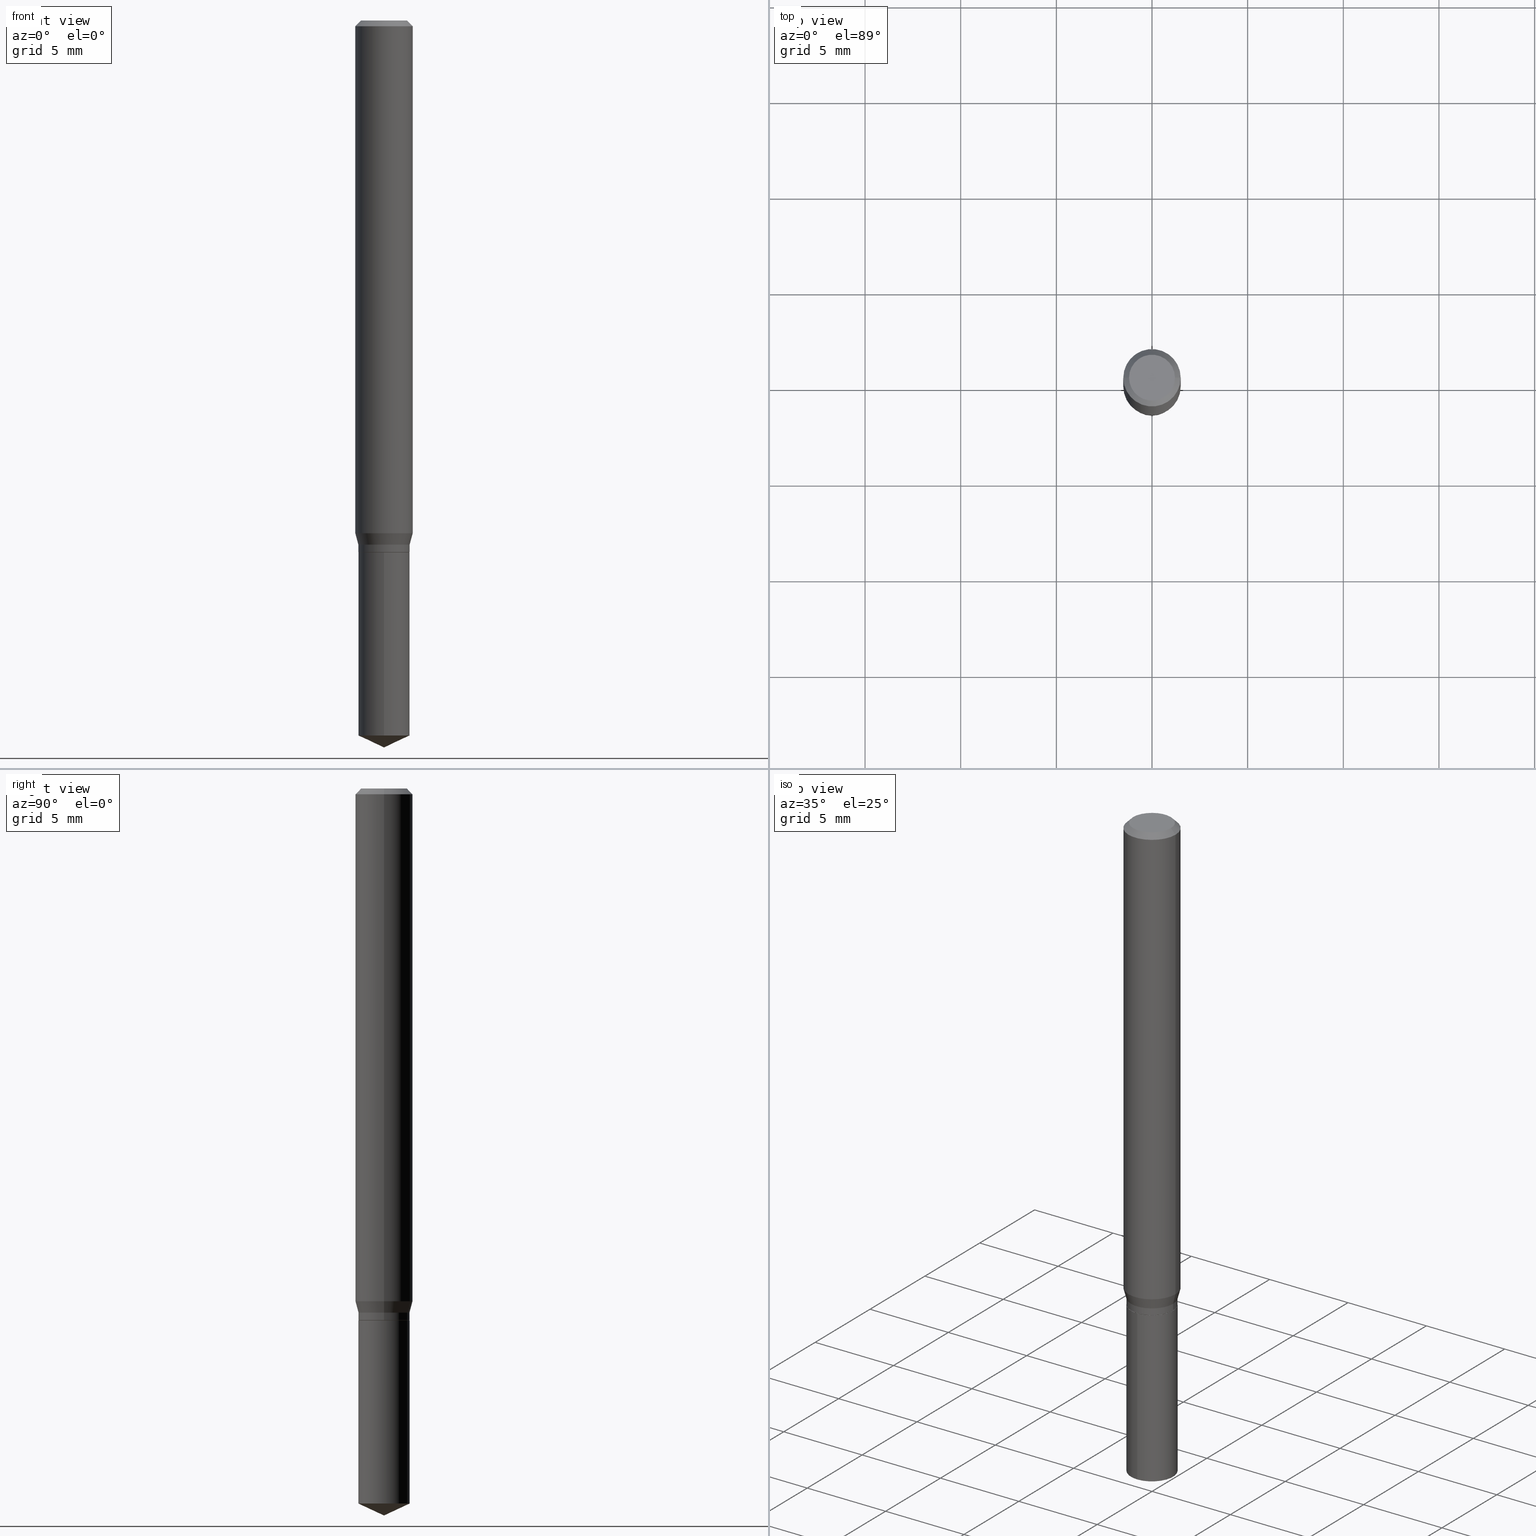
[diagram: canonical four-view strip — front | top / right | iso, engineering-drawing reading convention]
A machine part, canonical four-view strip (front | top / right | iso — engineering-drawing reading convention). The complete STEP part file that produces these views, byte-faithful:
ISO-10303-21;
HEADER;
FILE_DESCRIPTION (( 'STEP AP203' ),
    '1' );
FILE_NAME ('08026.STEP',
    '2024-04-24T09:13:47',
    ( '' ),
    ( '' ),
    'SwSTEP 2.0',
    'SolidWorks 2023',
    '' );
FILE_SCHEMA (( 'CONFIG_CONTROL_DESIGN' ));
ENDSEC;

DATA;
#1 = ORIENTED_EDGE ( 'NONE', *, *, #217, .T. ) ;
#2 = DIRECTION ( 'NONE',  ( -2.445468806185136597E-29, 3.491481338843145583E-15, 1.000000000000000000 ) ) ;
#3 = CIRCLE ( 'NONE', #133, 0.04724000000000000421 ) ;
#4 = CIRCLE ( 'NONE', #343, 0.05274999999999999828 ) ;
#5 = EDGE_LOOP ( 'NONE', ( #490, #1 ) ) ;
#6 = DIRECTION ( 'NONE',  ( -2.445468806185136877E-29, 3.491481338843145188E-15, 1.000000000000000000 ) ) ;
#7 = APPROVAL ( #422, 'UNSPECIFIED' ) ;
#8 = CARTESIAN_POINT ( 'NONE',  ( 0.000000000000000000, 0.000000000000000000, 0.000000000000000000 ) ) ;
#9 = VERTEX_POINT ( 'NONE', #191 ) ;
#10 = COORDINATED_UNIVERSAL_TIME_OFFSET ( 5, 0, .BEHIND. ) ;
#11 = DIRECTION ( 'NONE',  ( -2.445468806185136597E-29, 3.491481338843145583E-15, 1.000000000000000000 ) ) ;
#12 = AXIS2_PLACEMENT_3D ( 'NONE', #205, #13, #352 ) ;
#13 = DIRECTION ( 'NONE',  ( -2.445468806185136597E-29, 3.491481338843145583E-15, 1.000000000000000000 ) ) ;
#14 = CYLINDRICAL_SURFACE ( 'NONE', #425, 0.05274999999999999828 ) ;
#15 = CC_DESIGN_PERSON_AND_ORGANIZATION_ASSIGNMENT ( #195, #237, ( #155 ) ) ;
#16 = PRODUCT_DEFINITION_SHAPE ( 'NONE', 'NONE',  #103 ) ;
#17 = DIRECTION ( 'NONE',  ( 1.000000000000000000, -6.982962677686264344E-15, 0.000000000000000000 ) ) ;
#18 = CONICAL_SURFACE ( 'NONE', #192, 0.05224999999999999090, 0.7853981633975507526 ) ;
#19 = DIRECTION ( 'NONE',  ( -2.445468806185136597E-29, 3.491481338843145583E-15, 1.000000000000000000 ) ) ;
#20 = ADVANCED_FACE ( 'NONE', ( #416 ), #484, .F. ) ;
#21 = DIRECTION ( 'NONE',  ( -2.445468806185136597E-29, 3.491481338843145583E-15, 1.000000000000000000 ) ) ;
#22 = CARTESIAN_POINT ( 'NONE',  ( -0.05224999999999999090, -3.450167745929169899E-15, -1.094499999999999806 ) ) ;
#23 = AXIS2_PLACEMENT_3D ( 'NONE', #218, #216, #17 ) ;
#24 = DIRECTION ( 'NONE',  ( -6.982962677686265133E-15, -1.000000000000000000, 5.178858755761636657E-15 ) ) ;
#25 = APPROVAL ( #463, 'UNSPECIFIED' ) ;
#26 = CIRCLE ( 'NONE', #202, 0.05274999999999999828 ) ;
#27 = ORIENTED_EDGE ( 'NONE', *, *, #279, .F. ) ;
#28 = DIMENSIONAL_EXPONENTS ( 1.000000000000000000, 0.000000000000000000, 0.000000000000000000, 0.000000000000000000, 0.000000000000000000, 0.000000000000000000, 0.000000000000000000 ) ;
#29 = LINE ( 'NONE', #482, #275 ) ;
#30 = FACE_OUTER_BOUND ( 'NONE', #307, .T. ) ;
#31 = CYLINDRICAL_SURFACE ( 'NONE', #116, 0.05905000000000006771 ) ;
#32 = ORIENTED_EDGE ( 'NONE', *, *, #169, .T. ) ;
#33 = ORIENTED_EDGE ( 'NONE', *, *, #447, .F. ) ;
#34 = CONICAL_SURFACE ( 'NONE', #23, 0.05274999999999999828, 0.2617993877991502960 ) ;
#35 = VECTOR ( 'NONE', #267, 39.37007874015748143 ) ;
#36 = EDGE_CURVE ( 'NONE', #357, #236, #224, .T. ) ;
#37 = DATE_AND_TIME ( #241, #81 ) ;
#38 = MANIFOLD_SOLID_BREP ( 'Body-Move/Copy2[2]', #55 ) ;
#39 = ORIENTED_EDGE ( 'NONE', *, *, #97, .F. ) ;
#40 = ORIENTED_EDGE ( 'NONE', *, *, #358, .T. ) ;
#41 = COORDINATED_UNIVERSAL_TIME_OFFSET ( 5, 0, .BEHIND. ) ;
#42 = DIRECTION ( 'NONE',  ( 1.000000000000000000, -6.982962677686266711E-15, 4.876185090822587894E-29 ) ) ;
#43 = ORIENTED_EDGE ( 'NONE', *, *, #369, .F. ) ;
#44 = DATE_AND_TIME ( #427, #360 ) ;
#45 = FACE_OUTER_BOUND ( 'NONE', #370, .T. ) ;
#46 = ADVANCED_FACE ( 'NONE', ( #30 ), #468, .T. ) ;
#47 = AXIS2_PLACEMENT_3D ( 'NONE', #152, #120, #72 ) ;
#48 = CIRCLE ( 'NONE', #58, 0.05274999999999999828 ) ;
#49 = ORIENTED_EDGE ( 'NONE', *, *, #233, .F. ) ;
#50 = DIRECTION ( 'NONE',  ( 2.445458899330789267E-29, -3.491495526022433599E-15, -1.000000000000000000 ) ) ;
#51 = APPROVAL_ROLE ( '' ) ;
#52 = DIRECTION ( 'NONE',  ( -2.445458899330790108E-29, 3.491495526022433205E-15, 1.000000000000000000 ) ) ;
#53 = ORIENTED_EDGE ( 'NONE', *, *, #243, .F. ) ;
#54 = DIRECTION ( 'NONE',  ( -6.982962677686267499E-15, -1.000000000000000000, 3.520397390770440854E-15 ) ) ;
#55 = CLOSED_SHELL ( 'NONE', ( #335, #181, #394, #250, #119, #350, #288, #62, #46, #382, #20, #190 ) ) ;
#56 = AXIS2_PLACEMENT_3D ( 'NONE', #393, #130, #278 ) ;
#57 = ADVANCED_FACE ( 'NONE', ( #117 ), #228, .F. ) ;
#58 = AXIS2_PLACEMENT_3D ( 'NONE', #408, #118, #337 ) ;
#59 = DIRECTION ( 'NONE',  ( 1.000000000000000000, -6.982962677686265922E-15, 4.876176775795935232E-29 ) ) ;
#60 = CARTESIAN_POINT ( 'NONE',  ( 2.676565608369631234E-29, -3.821426325363821984E-15, -1.094499999999999806 ) ) ;
#61 = CARTESIAN_POINT ( 'NONE',  ( 0.000000000000000000, 0.000000000000000000, 0.000000000000000000 ) ) ;
#62 = ADVANCED_FACE ( 'NONE', ( #207 ), #315, .T. ) ;
#63 = AXIS2_PLACEMENT_3D ( 'NONE', #222, #147, #304 ) ;
#64 = PERSON ( 'UNSPECIFIED', 'UNSPECIFIED', 'UNSPECIFIED', ('UNSPECIFIED'), ('UNSPECIFIED'), ('UNSPECIFIED') ) ;
#65 = LINE ( 'NONE', #326, #114 ) ;
#66 = DIRECTION ( 'NONE',  ( -2.445468806185136597E-29, 3.491481338843145583E-15, 1.000000000000000000 ) ) ;
#67 = FACE_OUTER_BOUND ( 'NONE', #346, .T. ) ;
#68 = ORIENTED_EDGE ( 'NONE', *, *, #297, .F. ) ;
#69 = VECTOR ( 'NONE', #242, 39.37007874015748143 ) ;
#70 = CARTESIAN_POINT ( 'NONE',  ( 0.04724000000000000421, -3.852183633974369345E-16, -3.380025165621689721E-19 ) ) ;
#71 =( GEOMETRIC_REPRESENTATION_CONTEXT ( 3 ) GLOBAL_UNCERTAINTY_ASSIGNED_CONTEXT ( ( #164 ) ) GLOBAL_UNIT_ASSIGNED_CONTEXT ( ( #225, #339, #75 ) ) REPRESENTATION_CONTEXT ( 'NONE', 'WORKASPACE' ) );
#72 = DIRECTION ( 'NONE',  ( 1.000000000000000000, -6.982962677686265922E-15, 4.876176775795935793E-29 ) ) ;
#73 = LENGTH_MEASURE_WITH_UNIT ( LENGTH_MEASURE( 0.02539999999999999897 ), #115 );
#74 = VERTEX_POINT ( 'NONE', #245 ) ;
#75 =( NAMED_UNIT ( * ) SI_UNIT ( $, .STERADIAN. ) SOLID_ANGLE_UNIT ( ) );
#76 = CARTESIAN_POINT ( 'NONE',  ( 2.888098660104664204E-31, -4.123439461173780263E-17, -0.01181000000000007218 ) ) ;
#77 = EDGE_CURVE ( 'NONE', #453, #375, #84, .T. ) ;
#78 = PLANE ( 'NONE',  #328 ) ;
#79 = ORIENTED_EDGE ( 'NONE', *, *, #442, .T. ) ;
#80 = AXIS2_PLACEMENT_3D ( 'NONE', #61, #293, #59 ) ;
#81 = LOCAL_TIME ( 5, 13, 47.00000000000000000, #10 ) ;
#82 = APPROVAL_ROLE ( '' ) ;
#83 = LINE ( 'NONE', #87, #185 ) ;
#84 = LINE ( 'NONE', #208, #477 ) ;
#85 = ORIENTED_EDGE ( 'NONE', *, *, #36, .T. ) ;
#86 = APPROVAL_ROLE ( '' ) ;
#87 = CARTESIAN_POINT ( 'NONE',  ( -3.683512812479237438E-16, -0.05275000000000382161, -1.094499999999999806 ) ) ;
#88 = AXIS2_PLACEMENT_3D ( 'NONE', #232, #50, #423 ) ;
#89 = VECTOR ( 'NONE', #105, 39.37007874015748143 ) ;
#90 = CC_DESIGN_APPROVAL ( #25, ( #103 ) ) ;
#91 = EDGE_LOOP ( 'NONE', ( #483, #424, #395, #162 ) ) ;
#92 = APPROVAL_DATE_TIME ( #44, #435 ) ;
#93 = CARTESIAN_POINT ( 'NONE',  ( 2.675342873966538993E-29, -3.819680584694400481E-15, -1.093999999999999861 ) ) ;
#94 = ORIENTED_EDGE ( 'NONE', *, *, #442, .F. ) ;
#95 = PERSON_AND_ORGANIZATION_ROLE ( 'design_owner' ) ;
#96 = FACE_OUTER_BOUND ( 'NONE', #316, .T. ) ;
#97 = EDGE_CURVE ( 'NONE', #375, #430, #458, .T. ) ;
#98 = ORIENTED_EDGE ( 'NONE', *, *, #206, .F. ) ;
#99 = DIRECTION ( 'NONE',  ( 1.000000000000000000, -6.982962677686264344E-15, 0.000000000000000000 ) ) ;
#100 = CIRCLE ( 'NONE', #255, 0.05274999999999999828 ) ;
#101 = PRODUCT ( '08026', '08026', '', ( #466 ) ) ;
#102 = CARTESIAN_POINT ( 'NONE',  ( 0.05905000000000006771, -4.123439461173745257E-16, 2.879382386107503723E-30 ) ) ;
#103 = PRODUCT_DEFINITION ( 'UNKNOWN', '', #155, #177 ) ;
#104 = DIRECTION ( 'NONE',  ( 1.000000000000000000, -6.982962677686265133E-15, 0.000000000000000000 ) ) ;
#105 = DIRECTION ( 'NONE',  ( -0.2588190451025215721, 5.211531920934551831E-15, 0.9659258262890679791 ) ) ;
#106 = CIRCLE ( 'NONE', #371, 0.05905000000000013016 ) ;
#107 = LOCAL_TIME ( 5, 13, 47.00000000000000000, #41 ) ;
#108 = LINE ( 'NONE', #257, #485 ) ;
#109 = CARTESIAN_POINT ( 'NONE',  ( -0.05904999999999999832, -1.443126456831318198E-15, -0.01181000000000007218 ) ) ;
#110 = ORIENTED_EDGE ( 'NONE', *, *, #111, .F. ) ;
#111 = EDGE_CURVE ( 'NONE', #271, #388, #141, .T. ) ;
#112 = DIRECTION ( 'NONE',  ( -2.445468806185136597E-29, 3.491481338843145583E-15, 1.000000000000000000 ) ) ;
#113 = ORIENTED_EDGE ( 'NONE', *, *, #489, .F. ) ;
#114 = VECTOR ( 'NONE', #364, 39.37007874015748143 ) ;
#115 =( LENGTH_UNIT ( ) NAMED_UNIT ( * ) SI_UNIT ( $, .METRE. ) );
#116 = AXIS2_PLACEMENT_3D ( 'NONE', #231, #112, #261 ) ;
#117 = FACE_OUTER_BOUND ( 'NONE', #194, .T. ) ;
#118 = DIRECTION ( 'NONE',  ( -2.445458899330790108E-29, 3.491495526022433205E-15, 1.000000000000000000 ) ) ;
#119 = ADVANCED_FACE ( 'NONE', ( #470 ), #457, .T. ) ;
#120 = DIRECTION ( 'NONE',  ( -2.438088387897960049E-29, 3.491481338843145188E-15, 1.000000000000000000 ) ) ;
#121 = DIRECTION ( 'NONE',  ( 0.000000000000000000, 0.000000000000000000, 1.000000000000000000 ) ) ;
#122 = ORIENTED_EDGE ( 'NONE', *, *, #254, .T. ) ;
#123 = COORDINATED_UNIVERSAL_TIME_OFFSET ( 5, 0, .BEHIND. ) ;
#124 = FACE_OUTER_BOUND ( 'NONE', #160, .T. ) ;
#125 = AXIS2_PLACEMENT_3D ( 'NONE', #362, #367, #366 ) ;
#126 = CC_DESIGN_PERSON_AND_ORGANIZATION_ASSIGNMENT ( #348, #95, ( #101 ) ) ;
#127 = DATE_AND_TIME ( #317, #303 ) ;
#128 = DIRECTION ( 'NONE',  ( 1.000000000000000000, -6.982962677686266711E-15, 4.876176775795936353E-29 ) ) ;
#129 = DATE_AND_TIME ( #274, #134 ) ;
#130 = DIRECTION ( 'NONE',  ( -2.445468806185136597E-29, 3.491481338843145583E-15, 1.000000000000000000 ) ) ;
#131 = PERSON_AND_ORGANIZATION ( #64, #322 ) ;
#132 = DIRECTION ( 'NONE',  ( -2.445468806185136597E-29, 3.491481338843145583E-15, 1.000000000000000000 ) ) ;
#133 = AXIS2_PLACEMENT_3D ( 'NONE', #286, #384, #42 ) ;
#134 = LOCAL_TIME ( 5, 13, 47.00000000000000000, #123 ) ;
#135 = ORIENTED_EDGE ( 'NONE', *, *, #475, .F. ) ;
#136 = CALENDAR_DATE ( 2024, 24, 4 ) ;
#137 = CARTESIAN_POINT ( 'NONE',  ( 2.888098660104664204E-31, -4.123439461173780263E-17, -0.01181000000000007218 ) ) ;
#138 = ADVANCED_FACE ( 'NONE', ( #124 ), #421, .T. ) ;
#139 = CARTESIAN_POINT ( 'NONE',  ( 2.676565608369631794E-29, -3.821426325363822773E-15, -1.094499999999999806 ) ) ;
#140 = FACE_OUTER_BOUND ( 'NONE', #227, .T. ) ;
#141 = CIRCLE ( 'NONE', #56, 0.05905000000000013016 ) ;
#142 = CIRCLE ( 'NONE', #244, 0.05274999999999999828 ) ;
#143 = CARTESIAN_POINT ( 'NONE',  ( 2.676565608369631234E-29, -3.821426325363821984E-15, -1.094499999999999806 ) ) ;
#144 = DIRECTION ( 'NONE',  ( -2.445468806185136597E-29, 3.491481338843145583E-15, 1.000000000000000000 ) ) ;
#145 = CARTESIAN_POINT ( 'NONE',  ( 0.05274999999999999828, -4.134612201458050769E-15, -1.078699999999999992 ) ) ;
#146 = CONICAL_SURFACE ( 'NONE', #221, 0.05904999999999999832, 0.7853981633974452814 ) ;
#147 = DIRECTION ( 'NONE',  ( -2.445458899330790108E-29, 3.491495526022433205E-15, 1.000000000000000000 ) ) ;
#148 = EDGE_CURVE ( 'NONE', #74, #430, #247, .T. ) ;
#149 = LINE ( 'NONE', #22, #451 ) ;
#150 = EDGE_LOOP ( 'NONE', ( #196, #122, #33 ) ) ;
#151 = LINE ( 'NONE', #300, #35 ) ;
#152 = CARTESIAN_POINT ( 'NONE',  ( 4.674566726050190474E-29, -9.601750056838835032E-16, -1.094499999999999806 ) ) ;
#153 = EDGE_CURVE ( 'NONE', #380, #246, #239, .T. ) ;
#154 = VECTOR ( 'NONE', #251, 39.37007874015748143 ) ;
#155 = PRODUCT_DEFINITION_FORMATION_WITH_SPECIFIED_SOURCE ( 'ANY', '', #101, .NOT_KNOWN. ) ;
#156 = VERTEX_POINT ( 'NONE', #387 ) ;
#157 = ORIENTED_EDGE ( 'NONE', *, *, #260, .F. ) ;
#158 = PERSON_AND_ORGANIZATION ( #64, #322 ) ;
#159 = ORIENTED_EDGE ( 'NONE', *, *, #465, .T. ) ;
#160 = EDGE_LOOP ( 'NONE', ( #455, #373, #446, #113 ) ) ;
#161 = DIRECTION ( 'NONE',  ( 1.000000000000000000, -6.982962677686266711E-15, 0.000000000000000000 ) ) ;
#162 = ORIENTED_EDGE ( 'NONE', *, *, #211, .F. ) ;
#163 = DIRECTION ( 'NONE',  ( 2.445468806185136597E-29, -3.491481338843145583E-15, -1.000000000000000000 ) ) ;
#164 = UNCERTAINTY_MEASURE_WITH_UNIT (LENGTH_MEASURE( 1.000000000000000082E-05 ), #225, 'distance_accuracy_value', 'NONE');
#165 = EDGE_LOOP ( 'NONE', ( #310, #340, #94, #135 ) ) ;
#166 = PERSON_AND_ORGANIZATION ( #64, #322 ) ;
#167 = CARTESIAN_POINT ( 'NONE',  ( 2.676565608369631234E-29, -3.821426325363821984E-15, -1.094499999999999806 ) ) ;
#168 = ORIENTED_EDGE ( 'NONE', *, *, #481, .T. ) ;
#169 = EDGE_CURVE ( 'NONE', #9, #259, #276, .T. ) ;
#170 = SECURITY_CLASSIFICATION_LEVEL ( 'unclassified' ) ;
#171 = DIRECTION ( 'NONE',  ( -2.445468806185136597E-29, 3.491481338843145583E-15, 1.000000000000000000 ) ) ;
#172 = DIRECTION ( 'NONE',  ( -2.445458899330790108E-29, 3.491495526022433205E-15, 1.000000000000000000 ) ) ;
#173 = CARTESIAN_POINT ( 'NONE',  ( 2.676565608369631794E-29, -3.821426325363822773E-15, -1.094499999999999806 ) ) ;
#174 = PRODUCT_RELATED_PRODUCT_CATEGORY ( 'detail', '', ( #101 ) ) ;
#175 = CARTESIAN_POINT ( 'NONE',  ( 8.265746106709734507E-48, -1.180129479067563789E-33, -3.380025165646692144E-19 ) ) ;
#176 = AXIS2_PLACEMENT_3D ( 'NONE', #280, #52, #462 ) ;
#177 = DESIGN_CONTEXT ( 'detailed design', #229, 'design' ) ;
#178 = SECURITY_CLASSIFICATION ( '', '', #170 ) ;
#179 = DIRECTION ( 'NONE',  ( -2.445468806185136597E-29, 3.491481338843145583E-15, 1.000000000000000000 ) ) ;
#180 = DIRECTION ( 'NONE',  ( 1.000000000000000000, -6.982962677686264344E-15, 0.000000000000000000 ) ) ;
#181 = ADVANCED_FACE ( 'NONE', ( #45 ), #146, .T. ) ;
#182 = CARTESIAN_POINT ( 'NONE',  ( 0.05224999999999999090, -4.186286125272929641E-15, -1.094499999999999806 ) ) ;
#183 = VERTEX_POINT ( 'NONE', #432 ) ;
#184 = AXIS2_PLACEMENT_3D ( 'NONE', #8, #464, #128 ) ;
#185 = VECTOR ( 'NONE', #390, 39.37007874015748143 ) ;
#186 = APPROVAL_PERSON_ORGANIZATION ( #379, #7, #51 ) ;
#187 = ORIENTED_EDGE ( 'NONE', *, *, #279, .T. ) ;
#188 = CARTESIAN_POINT ( 'NONE',  ( -3.683512812479237438E-16, -0.05275000000000382161, -1.094499999999999806 ) ) ;
#189 = EDGE_LOOP ( 'NONE', ( #338, #269, #85, #98 ) ) ;
#190 = ADVANCED_FACE ( 'NONE', ( #428 ), #441, .T. ) ;
#191 = CARTESIAN_POINT ( 'NONE',  ( 3.658651059288794515E-29, -5.223626456482161457E-15, -1.496099999999999985 ) ) ;
#192 = AXIS2_PLACEMENT_3D ( 'NONE', #330, #144, #180 ) ;
#193 = CC_DESIGN_APPROVAL ( #435, ( #178 ) ) ;
#194 = EDGE_LOOP ( 'NONE', ( #347, #219 ) ) ;
#195 = PERSON_AND_ORGANIZATION ( #64, #322 ) ;
#196 = ORIENTED_EDGE ( 'NONE', *, *, #169, .F. ) ;
#197 = ORIENTED_EDGE ( 'NONE', *, *, #342, .F. ) ;
#198 = EDGE_CURVE ( 'NONE', #156, #397, #83, .T. ) ;
#199 = CARTESIAN_POINT ( 'NONE',  ( -9.261924752013118283E-28, 1.322368428517963298E-13, 37.87397874015748300 ) ) ;
#200 = VERTEX_POINT ( 'NONE', #318 ) ;
#201 = PERSON_AND_ORGANIZATION ( #64, #322 ) ;
#202 = AXIS2_PLACEMENT_3D ( 'NONE', #467, #132, #284 ) ;
#203 = DIRECTION ( 'NONE',  ( 0.7071067811865453523, -7.319954787623248157E-15, -0.7071067811865496822 ) ) ;
#204 = COORDINATED_UNIVERSAL_TIME_OFFSET ( 5, 0, .BEHIND. ) ;
#205 = CARTESIAN_POINT ( 'NONE',  ( 0.000000000000000000, 0.000000000000000000, 0.000000000000000000 ) ) ;
#206 = EDGE_CURVE ( 'NONE', #246, #236, #26, .T. ) ;
#207 = FACE_OUTER_BOUND ( 'NONE', #381, .T. ) ;
#208 = CARTESIAN_POINT ( 'NONE',  ( 0.05904999999999999832, -4.463468013801466955E-16, -0.01181000000000007218 ) ) ;
#209 = AXIS2_PLACEMENT_3D ( 'NONE', #76, #301, #449 ) ;
#210 = AXIS2_PLACEMENT_3D ( 'NONE', #471, #472, #440 ) ;
#211 = EDGE_CURVE ( 'NONE', #380, #357, #478, .T. ) ;
#212 = CARTESIAN_POINT ( 'NONE',  ( -0.05274999999999999828, -3.391449627096647910E-15, -1.078699999999999992 ) ) ;
#213 = CARTESIAN_POINT ( 'NONE',  ( -0.05274999999999999828, -3.418159459338797704E-15, -1.093999999999999861 ) ) ;
#214 = CARTESIAN_POINT ( 'NONE',  ( 3.748112931134887783E-16, 0.05274999999999485656, -1.471502271032324227 ) ) ;
#215 = VECTOR ( 'NONE', #413, 39.37007874015748143 ) ;
#216 = DIRECTION ( 'NONE',  ( -2.445468806185136597E-29, 3.491481338843145583E-15, 1.000000000000000000 ) ) ;
#217 = EDGE_CURVE ( 'NONE', #453, #74, #3, .T. ) ;
#218 = CARTESIAN_POINT ( 'NONE',  ( 2.637927201231906442E-29, -3.766260920210100894E-15, -1.078699999999999992 ) ) ;
#219 = ORIENTED_EDGE ( 'NONE', *, *, #489, .T. ) ;
#220 = ORIENTED_EDGE ( 'NONE', *, *, #77, .F. ) ;
#221 = AXIS2_PLACEMENT_3D ( 'NONE', #137, #163, #356 ) ;
#222 = CARTESIAN_POINT ( 'NONE',  ( -9.261924752013118283E-28, 1.322368428517963298E-13, 37.87397874015748300 ) ) ;
#223 = ADVANCED_FACE ( 'NONE', ( #96 ), #469, .T. ) ;
#224 = LINE ( 'NONE', #268, #215 ) ;
#225 =( CONVERSION_BASED_UNIT ( 'INCH', #73 ) LENGTH_UNIT ( ) NAMED_UNIT ( #28 ) );
#226 = ORIENTED_EDGE ( 'NONE', *, *, #217, .F. ) ;
#227 = EDGE_LOOP ( 'NONE', ( #296, #305, #377, #110 ) ) ;
#228 = PLANE ( 'NONE',  #88 ) ;
#229 = APPLICATION_CONTEXT ( 'configuration controlled 3d designs of mechanical parts and assemblies' ) ;
#230 = AXIS2_PLACEMENT_3D ( 'NONE', #199, #349, #54 ) ;
#231 = CARTESIAN_POINT ( 'NONE',  ( 0.000000000000000000, 0.000000000000000000, 0.000000000000000000 ) ) ;
#232 = CARTESIAN_POINT ( 'NONE',  ( 2.676565608369631794E-29, -3.821426325363822773E-15, -1.094499999999999806 ) ) ;
#233 = EDGE_CURVE ( 'NONE', #236, #388, #313, .T. ) ;
#234 = SHAPE_DEFINITION_REPRESENTATION ( #16, #238 ) ;
#235 = DIRECTION ( 'NONE',  ( 1.000000000000000000, -6.982962677686264344E-15, 0.000000000000000000 ) ) ;
#236 = VERTEX_POINT ( 'NONE', #145 ) ;
#237 = PERSON_AND_ORGANIZATION_ROLE ( 'creator' ) ;
#238 = ADVANCED_BREP_SHAPE_REPRESENTATION ( '08026', ( #365, #38, #351 ), #71 ) ;
#239 = LINE ( 'NONE', #359, #402 ) ;
#240 = EDGE_LOOP ( 'NONE', ( #79, #368, #157, #409 ) ) ;
#241 = CALENDAR_DATE ( 2024, 24, 4 ) ;
#242 = DIRECTION ( 'NONE',  ( -0.7071067811865453523, 2.468850131082234184E-15, -0.7071067811865496822 ) ) ;
#243 = EDGE_CURVE ( 'NONE', #433, #200, #327, .T. ) ;
#244 = AXIS2_PLACEMENT_3D ( 'NONE', #372, #406, #24 ) ;
#245 = CARTESIAN_POINT ( 'NONE',  ( -0.04724000000000000421, 3.504923541997677355E-16, -3.380025165670481712E-19 ) ) ;
#246 = VERTEX_POINT ( 'NONE', #291 ) ;
#247 = LINE ( 'NONE', #321, #69 ) ;
#248 = ORIENTED_EDGE ( 'NONE', *, *, #324, .T. ) ;
#249 = DIRECTION ( 'NONE',  ( -2.445468806185136877E-29, 3.491481338843145188E-15, 1.000000000000000000 ) ) ;
#250 = ADVANCED_FACE ( 'NONE', ( #294 ), #273, .T. ) ;
#251 = DIRECTION ( 'NONE',  ( -2.445468806185136877E-29, 3.491481338843145188E-15, 1.000000000000000000 ) ) ;
#252 = FACE_OUTER_BOUND ( 'NONE', #165, .T. ) ;
#253 = FACE_OUTER_BOUND ( 'NONE', #266, .T. ) ;
#254 = EDGE_CURVE ( 'NONE', #9, #156, #65, .T. ) ;
#255 = AXIS2_PLACEMENT_3D ( 'NONE', #139, #172, #361 ) ;
#256 = CONICAL_SURFACE ( 'NONE', #63, 84.42940631927464779, 1.134464013796317339 ) ;
#257 = CARTESIAN_POINT ( 'NONE',  ( -0.05905000000000006771, 4.195754854663396409E-16, -2.904631170795525045E-30 ) ) ;
#258 = CARTESIAN_POINT ( 'NONE',  ( 2.675342873966538993E-29, -3.819680584694400481E-15, -1.093999999999999861 ) ) ;
#259 = VERTEX_POINT ( 'NONE', #214 ) ;
#260 = EDGE_CURVE ( 'NONE', #236, #246, #341, .T. ) ;
#261 = DIRECTION ( 'NONE',  ( 1.000000000000000000, -6.982962677686266711E-15, 4.876176775795936353E-29 ) ) ;
#262 = ORIENTED_EDGE ( 'NONE', *, *, #254, .F. ) ;
#263 = CLOSED_SHELL ( 'NONE', ( #363, #223, #459, #138, #57 ) ) ;
#264 = APPROVAL_PERSON_ORGANIZATION ( #166, #25, #86 ) ;
#265 = DIRECTION ( 'NONE',  ( 0.7071067811866199593, -2.468850131083015945E-15, 0.7071067811864750752 ) ) ;
#266 = EDGE_LOOP ( 'NONE', ( #159, #168, #391, #407 ) ) ;
#267 = DIRECTION ( 'NONE',  ( -2.445458899330790108E-29, 3.491495526022433599E-15, 1.000000000000000000 ) ) ;
#268 = CARTESIAN_POINT ( 'NONE',  ( 0.05274999999999999828, -3.683512812479505157E-16, 2.572183249232355612E-30 ) ) ;
#269 = ORIENTED_EDGE ( 'NONE', *, *, #211, .T. ) ;
#270 = DIRECTION ( 'NONE',  ( -2.445468806185136597E-29, 3.491481338843145583E-15, 1.000000000000000000 ) ) ;
#271 = VERTEX_POINT ( 'NONE', #438 ) ;
#272 = EDGE_CURVE ( 'NONE', #397, #183, #100, .T. ) ;
#273 = CONICAL_SURFACE ( 'NONE', #333, 0.05274999999999999828, 0.2617993877991502960 ) ;
#274 = CALENDAR_DATE ( 2024, 24, 4 ) ;
#275 = VECTOR ( 'NONE', #265, 39.37007874015748143 ) ;
#276 = LINE ( 'NONE', #354, #417 ) ;
#277 = PERSON_AND_ORGANIZATION_ROLE ( 'classification_officer' ) ;
#278 = DIRECTION ( 'NONE',  ( 1.000000000000000000, -6.982962677686265133E-15, 0.000000000000000000 ) ) ;
#279 = EDGE_CURVE ( 'NONE', #430, #375, #410, .T. ) ;
#280 = CARTESIAN_POINT ( 'NONE',  ( 2.676565608369631794E-29, -3.821426325363822773E-15, -1.094499999999999806 ) ) ;
#281 = ORIENTED_EDGE ( 'NONE', *, *, #306, .F. ) ;
#282 = PERSON_AND_ORGANIZATION_ROLE ( 'design_supplier' ) ;
#283 = AXIS2_PLACEMENT_3D ( 'NONE', #143, #66, #99 ) ;
#284 = DIRECTION ( 'NONE',  ( 1.000000000000000000, -6.982962677686264344E-15, 0.000000000000000000 ) ) ;
#285 = APPROVAL_DATE_TIME ( #37, #7 ) ;
#286 = CARTESIAN_POINT ( 'NONE',  ( 8.265746106709734507E-48, -1.180129479067563789E-33, -3.380025165646692144E-19 ) ) ;
#287 = CARTESIAN_POINT ( 'NONE',  ( 0.05274999999999999828, -4.188031865942351145E-15, -1.093999999999999861 ) ) ;
#288 = ADVANCED_FACE ( 'NONE', ( #140 ), #34, .T. ) ;
#289 = FACE_OUTER_BOUND ( 'NONE', #189, .T. ) ;
#290 = CIRCLE ( 'NONE', #403, 0.05274999999999999828 ) ;
#291 = CARTESIAN_POINT ( 'NONE',  ( -0.05274999999999999828, -3.418159459338797704E-15, -1.078699999999999992 ) ) ;
#292 = CC_DESIGN_PERSON_AND_ORGANIZATION_ASSIGNMENT ( #456, #277, ( #178 ) ) ;
#293 = DIRECTION ( 'NONE',  ( -2.445468806185136597E-29, 3.491481338843145583E-15, 1.000000000000000000 ) ) ;
#294 = FACE_OUTER_BOUND ( 'NONE', #353, .T. ) ;
#295 = VECTOR ( 'NONE', #400, 39.37007874015748143 ) ;
#296 = ORIENTED_EDGE ( 'NONE', *, *, #358, .F. ) ;
#297 = EDGE_CURVE ( 'NONE', #271, #430, #108, .T. ) ;
#298 = DIRECTION ( 'NONE',  ( -0.7071067811866199593, 7.493145998870616062E-15, 0.7071067811864750752 ) ) ;
#299 = ORIENTED_EDGE ( 'NONE', *, *, #324, .F. ) ;
#300 = CARTESIAN_POINT ( 'NONE',  ( 3.748112931134795092E-16, 0.05274999999999616801, -1.094500000000000028 ) ) ;
#301 = DIRECTION ( 'NONE',  ( 2.445468806185136597E-29, -3.491481338843145583E-15, -1.000000000000000000 ) ) ;
#302 = AXIS2_PLACEMENT_3D ( 'NONE', #60, #19, #398 ) ;
#303 = LOCAL_TIME ( 5, 13, 47.00000000000000000, #204 ) ;
#304 = DIRECTION ( 'NONE',  ( -6.982962677686267499E-15, -1.000000000000000000, 3.520397390770440854E-15 ) ) ;
#305 = ORIENTED_EDGE ( 'NONE', *, *, #206, .T. ) ;
#306 = EDGE_CURVE ( 'NONE', #74, #453, #311, .T. ) ;
#307 = EDGE_LOOP ( 'NONE', ( #220, #281, #480, #187 ) ) ;
#308 = DIRECTION ( 'NONE',  ( 1.000000000000000000, 0.000000000000000000, 0.000000000000000000 ) ) ;
#309 = CARTESIAN_POINT ( 'NONE',  ( 2.888098660104664204E-31, -4.123439461173780263E-17, -0.01181000000000007218 ) ) ;
#310 = ORIENTED_EDGE ( 'NONE', *, *, #243, .T. ) ;
#311 = CIRCLE ( 'NONE', #436, 0.04724000000000000421 ) ;
#312 = CC_DESIGN_APPROVAL ( #7, ( #155 ) ) ;
#313 = LINE ( 'NONE', #404, #295 ) ;
#314 = CC_DESIGN_PERSON_AND_ORGANIZATION_ASSIGNMENT ( #201, #383, ( #103 ) ) ;
#315 = CYLINDRICAL_SURFACE ( 'NONE', #184, 0.05905000000000006771 ) ;
#316 = EDGE_LOOP ( 'NONE', ( #262, #32, #461 ) ) ;
#317 = CALENDAR_DATE ( 2024, 24, 4 ) ;
#318 = CARTESIAN_POINT ( 'NONE',  ( -0.05224999999999999090, -3.447518518755059093E-15, -1.094499999999999806 ) ) ;
#319 = COORDINATED_UNIVERSAL_TIME_OFFSET ( 5, 0, .BEHIND. ) ;
#320 = AXIS2_PLACEMENT_3D ( 'NONE', #309, #2, #161 ) ;
#321 = CARTESIAN_POINT ( 'NONE',  ( -0.05904999999999999832, 3.711095515056362547E-16, -0.01181000000000007218 ) ) ;
#322 = ORGANIZATION ( 'UNSPECIFIED', 'UNSPECIFIED', '' ) ;
#323 = CARTESIAN_POINT ( 'NONE',  ( 2.580429534083956797E-29, -3.684169489983579231E-15, -1.055188079912315446 ) ) ;
#324 = EDGE_CURVE ( 'NONE', #388, #271, #106, .T. ) ;
#325 = DIRECTION ( 'NONE',  ( -6.982962677686265133E-15, -1.000000000000000000, 2.589429377880818329E-15 ) ) ;
#326 = CARTESIAN_POINT ( 'NONE',  ( 3.658651059288795076E-29, -5.223626456482161457E-15, -1.496099999999999985 ) ) ;
#327 = CIRCLE ( 'NONE', #283, 0.05224999999999999090 ) ;
#328 = AXIS2_PLACEMENT_3D ( 'NONE', #334, #479, #452 ) ;
#329 = DIRECTION ( 'NONE',  ( 1.000000000000000000, -6.982962677686266711E-15, 4.876185090822587894E-29 ) ) ;
#330 = CARTESIAN_POINT ( 'NONE',  ( 2.676565608369631234E-29, -3.821426325363821984E-15, -1.094499999999999806 ) ) ;
#331 = DIRECTION ( 'NONE',  ( -6.982962677686265133E-15, -1.000000000000000000, 2.589429377880818329E-15 ) ) ;
#332 = EDGE_LOOP ( 'NONE', ( #53, #197 ) ) ;
#333 = AXIS2_PLACEMENT_3D ( 'NONE', #401, #179, #474 ) ;
#334 = CARTESIAN_POINT ( 'NONE',  ( 4.132873053354867254E-48, -5.900647395337818946E-34, -1.690012582823346072E-19 ) ) ;
#335 = ADVANCED_FACE ( 'NONE', ( #252 ), #18, .T. ) ;
#336 = ORIENTED_EDGE ( 'NONE', *, *, #260, .T. ) ;
#337 = DIRECTION ( 'NONE',  ( -6.982962677686265133E-15, -1.000000000000000000, 5.178858755761636657E-15 ) ) ;
#338 = ORIENTED_EDGE ( 'NONE', *, *, #153, .F. ) ;
#339 =( NAMED_UNIT ( * ) PLANE_ANGLE_UNIT ( ) SI_UNIT ( $, .RADIAN. ) );
#340 = ORIENTED_EDGE ( 'NONE', *, *, #429, .T. ) ;
#341 = CIRCLE ( 'NONE', #210, 0.05274999999999999828 ) ;
#342 = EDGE_CURVE ( 'NONE', #200, #433, #378, .T. ) ;
#343 = AXIS2_PLACEMENT_3D ( 'NONE', #258, #270, #445 ) ;
#344 = FACE_OUTER_BOUND ( 'NONE', #150, .T. ) ;
#345 = ORIENTED_EDGE ( 'NONE', *, *, #111, .T. ) ;
#346 = EDGE_LOOP ( 'NONE', ( #248, #487, #39, #43 ) ) ;
#347 = ORIENTED_EDGE ( 'NONE', *, *, #272, .T. ) ;
#348 = PERSON_AND_ORGANIZATION ( #64, #322 ) ;
#349 = DIRECTION ( 'NONE',  ( -2.445458899330790108E-29, 3.491495526022433205E-15, 1.000000000000000000 ) ) ;
#350 = ADVANCED_FACE ( 'NONE', ( #289 ), #476, .T. ) ;
#351 = AXIS2_PLACEMENT_3D ( 'NONE', #454, #121, #308 ) ;
#352 = DIRECTION ( 'NONE',  ( 1.000000000000000000, -6.982962677686265922E-15, 4.876176775795935232E-29 ) ) ;
#353 = EDGE_LOOP ( 'NONE', ( #336, #40, #299, #49 ) ) ;
#354 = CARTESIAN_POINT ( 'NONE',  ( 3.658672935554494692E-29, -5.223595400746700193E-15, -1.496099999999999985 ) ) ;
#355 = DATE_AND_TIME ( #136, #107 ) ;
#356 = DIRECTION ( 'NONE',  ( -1.000000000000000000, 6.982962677686266711E-15, 0.000000000000000000 ) ) ;
#357 = VERTEX_POINT ( 'NONE', #287 ) ;
#358 = EDGE_CURVE ( 'NONE', #246, #271, #439, .T. ) ;
#359 = CARTESIAN_POINT ( 'NONE',  ( -0.05274999999999999828, 3.748112931134528358E-16, -2.594738260109462406E-30 ) ) ;
#360 = LOCAL_TIME ( 5, 13, 47.00000000000000000, #319 ) ;
#361 = DIRECTION ( 'NONE',  ( -6.982962677686265133E-15, -1.000000000000000000, 2.589429377880818329E-15 ) ) ;
#362 = CARTESIAN_POINT ( 'NONE',  ( 2.888098660104664204E-31, -4.123439461173780263E-17, -0.01181000000000007218 ) ) ;
#363 = ADVANCED_FACE ( 'NONE', ( #253 ), #14, .T. ) ;
#364 = DIRECTION ( 'NONE',  ( -6.328713451373378845E-15, -0.9063077870366498257, 0.4226182617406997188 ) ) ;
#365 = MANIFOLD_SOLID_BREP ( 'Body-Move/Copy2[1]', #263 ) ;
#366 = DIRECTION ( 'NONE',  ( 1.000000000000000000, -6.982962677686266711E-15, 0.000000000000000000 ) ) ;
#367 = DIRECTION ( 'NONE',  ( -2.445468806185136597E-29, 3.491481338843145583E-15, 1.000000000000000000 ) ) ;
#368 = ORIENTED_EDGE ( 'NONE', *, *, #153, .T. ) ;
#369 = EDGE_CURVE ( 'NONE', #388, #375, #437, .T. ) ;
#370 = EDGE_LOOP ( 'NONE', ( #226, #385, #411, #414 ) ) ;
#371 = AXIS2_PLACEMENT_3D ( 'NONE', #323, #21, #104 ) ;
#372 = CARTESIAN_POINT ( 'NONE',  ( 3.598509167133547340E-29, -5.137728067973478968E-15, -1.471502271032324005 ) ) ;
#373 = ORIENTED_EDGE ( 'NONE', *, *, #447, .T. ) ;
#374 = FACE_OUTER_BOUND ( 'NONE', #5, .T. ) ;
#375 = VERTEX_POINT ( 'NONE', #399 ) ;
#376 = CC_DESIGN_PERSON_AND_ORGANIZATION_ASSIGNMENT ( #131, #282, ( #155 ) ) ;
#377 = ORIENTED_EDGE ( 'NONE', *, *, #233, .T. ) ;
#378 = CIRCLE ( 'NONE', #302, 0.05224999999999999090 ) ;
#379 = PERSON_AND_ORGANIZATION ( #64, #322 ) ;
#380 = VERTEX_POINT ( 'NONE', #213 ) ;
#381 = EDGE_LOOP ( 'NONE', ( #68, #345, #444, #27 ) ) ;
#382 = ADVANCED_FACE ( 'NONE', ( #374 ), #78, .F. ) ;
#383 = PERSON_AND_ORGANIZATION_ROLE ( 'creator' ) ;
#384 = DIRECTION ( 'NONE',  ( -2.445468806185136597E-29, 3.491481338843145583E-15, 1.000000000000000000 ) ) ;
#385 = ORIENTED_EDGE ( 'NONE', *, *, #77, .T. ) ;
#386 = APPROVAL_STATUS ( 'not_yet_approved' ) ;
#387 = CARTESIAN_POINT ( 'NONE',  ( -3.683512812479145733E-16, -0.05275000000000514694, -1.471502271032323783 ) ) ;
#388 = VERTEX_POINT ( 'NONE', #443 ) ;
#389 = APPROVAL_PERSON_ORGANIZATION ( #158, #435, #82 ) ;
#390 = DIRECTION ( 'NONE',  ( -2.445458899330790108E-29, 3.491495526022433599E-15, 1.000000000000000000 ) ) ;
#391 = ORIENTED_EDGE ( 'NONE', *, *, #272, .F. ) ;
#392 = DATE_TIME_ROLE ( 'creation_date' ) ;
#393 = CARTESIAN_POINT ( 'NONE',  ( 2.580429534083956797E-29, -3.684169489983579231E-15, -1.055188079912315446 ) ) ;
#394 = ADVANCED_FACE ( 'NONE', ( #67 ), #31, .T. ) ;
#395 = ORIENTED_EDGE ( 'NONE', *, *, #475, .T. ) ;
#396 = DIRECTION ( 'NONE',  ( 6.439704144417032720E-15, 0.9063077870366527122, 0.4226182617406934461 ) ) ;
#397 = VERTEX_POINT ( 'NONE', #188 ) ;
#398 = DIRECTION ( 'NONE',  ( 1.000000000000000000, -6.982962677686264344E-15, 0.000000000000000000 ) ) ;
#399 = CARTESIAN_POINT ( 'NONE',  ( 0.05904999999999999832, -4.535783407291118600E-16, -0.01181000000000007218 ) ) ;
#400 = DIRECTION ( 'NONE',  ( 0.2588190451025215721, 1.565188264969619995E-15, 0.9659258262890679791 ) ) ;
#401 = CARTESIAN_POINT ( 'NONE',  ( 2.637927201231906442E-29, -3.766260920210100894E-15, -1.078699999999999992 ) ) ;
#402 = VECTOR ( 'NONE', #6, 39.37007874015748143 ) ;
#403 = AXIS2_PLACEMENT_3D ( 'NONE', #415, #448, #331 ) ;
#404 = CARTESIAN_POINT ( 'NONE',  ( 0.05274999999999999828, -4.134612201458050769E-15, -1.078699999999999992 ) ) ;
#405 = CC_DESIGN_DATE_AND_TIME_ASSIGNMENT ( #355, #392, ( #103 ) ) ;
#406 = DIRECTION ( 'NONE',  ( -2.445458899330790108E-29, 3.491495526022433205E-15, 1.000000000000000000 ) ) ;
#407 = ORIENTED_EDGE ( 'NONE', *, *, #198, .F. ) ;
#408 = CARTESIAN_POINT ( 'NONE',  ( 3.598509167133547340E-29, -5.137728067973478968E-15, -1.471502271032324005 ) ) ;
#409 = ORIENTED_EDGE ( 'NONE', *, *, #36, .F. ) ;
#410 = CIRCLE ( 'NONE', #125, 0.05904999999999999832 ) ;
#411 = ORIENTED_EDGE ( 'NONE', *, *, #97, .T. ) ;
#412 = APPLICATION_CONTEXT ( 'configuration controlled 3d designs of mechanical parts and assemblies' ) ;
#413 = DIRECTION ( 'NONE',  ( -2.445468806185136877E-29, 3.491481338843145188E-15, 1.000000000000000000 ) ) ;
#414 = ORIENTED_EDGE ( 'NONE', *, *, #148, .F. ) ;
#415 = CARTESIAN_POINT ( 'NONE',  ( 2.676565608369631794E-29, -3.821426325363822773E-15, -1.094499999999999806 ) ) ;
#416 = FACE_OUTER_BOUND ( 'NONE', #332, .T. ) ;
#417 = VECTOR ( 'NONE', #396, 39.37007874015749564 ) ;
#418 = APPROVAL_DATE_TIME ( #127, #25 ) ;
#419 = DIRECTION ( 'NONE',  ( 1.000000000000000000, -6.982962677686264344E-15, 0.000000000000000000 ) ) ;
#420 = CC_DESIGN_DATE_AND_TIME_ASSIGNMENT ( #129, #488, ( #178 ) ) ;
#421 = CYLINDRICAL_SURFACE ( 'NONE', #176, 0.05274999999999999828 ) ;
#422 = APPROVAL_STATUS ( 'not_yet_approved' ) ;
#423 = DIRECTION ( 'NONE',  ( 6.982962677686265922E-15, 1.000000000000000000, -3.491495526022433599E-15 ) ) ;
#424 = ORIENTED_EDGE ( 'NONE', *, *, #342, .T. ) ;
#425 = AXIS2_PLACEMENT_3D ( 'NONE', #173, #434, #325 ) ;
#426 = CC_DESIGN_SECURITY_CLASSIFICATION ( #178, ( #155 ) ) ;
#427 = CALENDAR_DATE ( 2024, 24, 4 ) ;
#428 = FACE_OUTER_BOUND ( 'NONE', #91, .T. ) ;
#429 = EDGE_CURVE ( 'NONE', #200, #380, #149, .T. ) ;
#430 = VERTEX_POINT ( 'NONE', #109 ) ;
#431 = APPLICATION_PROTOCOL_DEFINITION ( 'international standard', 'config_control_design', 1994, #229 ) ;
#432 = CARTESIAN_POINT ( 'NONE',  ( 3.748112931134887783E-16, 0.05274999999999616801, -1.094500000000000028 ) ) ;
#433 = VERTEX_POINT ( 'NONE', #182 ) ;
#434 = DIRECTION ( 'NONE',  ( -2.445458899330790108E-29, 3.491495526022433205E-15, 1.000000000000000000 ) ) ;
#435 = APPROVAL ( #386, 'UNSPECIFIED' ) ;
#436 = AXIS2_PLACEMENT_3D ( 'NONE', #175, #473, #329 ) ;
#437 = LINE ( 'NONE', #102, #154 ) ;
#438 = CARTESIAN_POINT ( 'NONE',  ( -0.05905000000000013016, -3.264594004517239738E-15, -1.055188079912315446 ) ) ;
#439 = LINE ( 'NONE', #212, #89 ) ;
#440 = DIRECTION ( 'NONE',  ( 1.000000000000000000, -6.982962677686264344E-15, 0.000000000000000000 ) ) ;
#441 = CONICAL_SURFACE ( 'NONE', #460, 0.05224999999999999090, 0.7853981633975507526 ) ;
#442 = EDGE_CURVE ( 'NONE', #357, #380, #4, .T. ) ;
#443 = CARTESIAN_POINT ( 'NONE',  ( 0.05905000000000013016, -4.096513436100954151E-15, -1.055188079912315446 ) ) ;
#444 = ORIENTED_EDGE ( 'NONE', *, *, #369, .T. ) ;
#445 = DIRECTION ( 'NONE',  ( 1.000000000000000000, -6.982962677686264344E-15, 0.000000000000000000 ) ) ;
#446 = ORIENTED_EDGE ( 'NONE', *, *, #198, .T. ) ;
#447 = EDGE_CURVE ( 'NONE', #259, #156, #48, .T. ) ;
#448 = DIRECTION ( 'NONE',  ( -2.445458899330790108E-29, 3.491495526022433205E-15, 1.000000000000000000 ) ) ;
#449 = DIRECTION ( 'NONE',  ( -1.000000000000000000, 6.982962677686266711E-15, 0.000000000000000000 ) ) ;
#450 = AXIS2_PLACEMENT_3D ( 'NONE', #93, #171, #235 ) ;
#451 = VECTOR ( 'NONE', #298, 39.37007874015748143 ) ;
#452 = DIRECTION ( 'NONE',  ( -1.000000000000000000, 6.982962677686265922E-15, -4.876176775795935793E-29 ) ) ;
#453 = VERTEX_POINT ( 'NONE', #70 ) ;
#454 = CARTESIAN_POINT ( 'NONE',  ( 0.000000000000000000, 0.000000000000000000, 0.000000000000000000 ) ) ;
#455 = ORIENTED_EDGE ( 'NONE', *, *, #481, .F. ) ;
#456 = PERSON_AND_ORGANIZATION ( #64, #322 ) ;
#457 = CYLINDRICAL_SURFACE ( 'NONE', #12, 0.05274999999999999828 ) ;
#458 = CIRCLE ( 'NONE', #320, 0.05904999999999999832 ) ;
#459 = ADVANCED_FACE ( 'NONE', ( #344 ), #256, .T. ) ;
#460 = AXIS2_PLACEMENT_3D ( 'NONE', #167, #11, #419 ) ;
#461 = ORIENTED_EDGE ( 'NONE', *, *, #465, .F. ) ;
#462 = DIRECTION ( 'NONE',  ( -6.982962677686265133E-15, -1.000000000000000000, 2.589429377880818329E-15 ) ) ;
#463 = APPROVAL_STATUS ( 'not_yet_approved' ) ;
#464 = DIRECTION ( 'NONE',  ( -2.445468806185136597E-29, 3.491481338843145583E-15, 1.000000000000000000 ) ) ;
#465 = EDGE_CURVE ( 'NONE', #156, #259, #142, .T. ) ;
#466 = MECHANICAL_CONTEXT ( 'NONE', #412, 'mechanical' ) ;
#467 = CARTESIAN_POINT ( 'NONE',  ( 2.637927201231906442E-29, -3.766260920210100894E-15, -1.078699999999999992 ) ) ;
#468 = CONICAL_SURFACE ( 'NONE', #209, 0.05904999999999999832, 0.7853981633974452814 ) ;
#469 = CONICAL_SURFACE ( 'NONE', #230, 84.42940631927464779, 1.134464013796317339 ) ;
#470 = FACE_OUTER_BOUND ( 'NONE', #240, .T. ) ;
#471 = CARTESIAN_POINT ( 'NONE',  ( 2.637927201231906442E-29, -3.766260920210100894E-15, -1.078699999999999992 ) ) ;
#472 = DIRECTION ( 'NONE',  ( -2.445468806185136597E-29, 3.491481338843145583E-15, 1.000000000000000000 ) ) ;
#473 = DIRECTION ( 'NONE',  ( -2.445468806185136597E-29, 3.491481338843145583E-15, 1.000000000000000000 ) ) ;
#474 = DIRECTION ( 'NONE',  ( 1.000000000000000000, -6.982962677686264344E-15, 0.000000000000000000 ) ) ;
#475 = EDGE_CURVE ( 'NONE', #433, #357, #29, .T. ) ;
#476 = CYLINDRICAL_SURFACE ( 'NONE', #80, 0.05274999999999999828 ) ;
#477 = VECTOR ( 'NONE', #203, 39.37007874015748143 ) ;
#478 = CIRCLE ( 'NONE', #450, 0.05274999999999999828 ) ;
#479 = DIRECTION ( 'NONE',  ( 2.438088387897960049E-29, -3.491481338843145188E-15, -1.000000000000000000 ) ) ;
#480 = ORIENTED_EDGE ( 'NONE', *, *, #148, .T. ) ;
#481 = EDGE_CURVE ( 'NONE', #259, #183, #151, .T. ) ;
#482 = CARTESIAN_POINT ( 'NONE',  ( 0.05224999999999999090, -4.186286125272929641E-15, -1.094499999999999806 ) ) ;
#483 = ORIENTED_EDGE ( 'NONE', *, *, #429, .F. ) ;
#484 = PLANE ( 'NONE',  #47 ) ;
#485 = VECTOR ( 'NONE', #249, 39.37007874015748143 ) ;
#486 = APPLICATION_PROTOCOL_DEFINITION ( 'international standard', 'config_control_design', 1994, #412 ) ;
#487 = ORIENTED_EDGE ( 'NONE', *, *, #297, .T. ) ;
#488 = DATE_TIME_ROLE ( 'classification_date' ) ;
#489 = EDGE_CURVE ( 'NONE', #183, #397, #290, .T. ) ;
#490 = ORIENTED_EDGE ( 'NONE', *, *, #306, .T. ) ;
ENDSEC;
END-ISO-10303-21;
